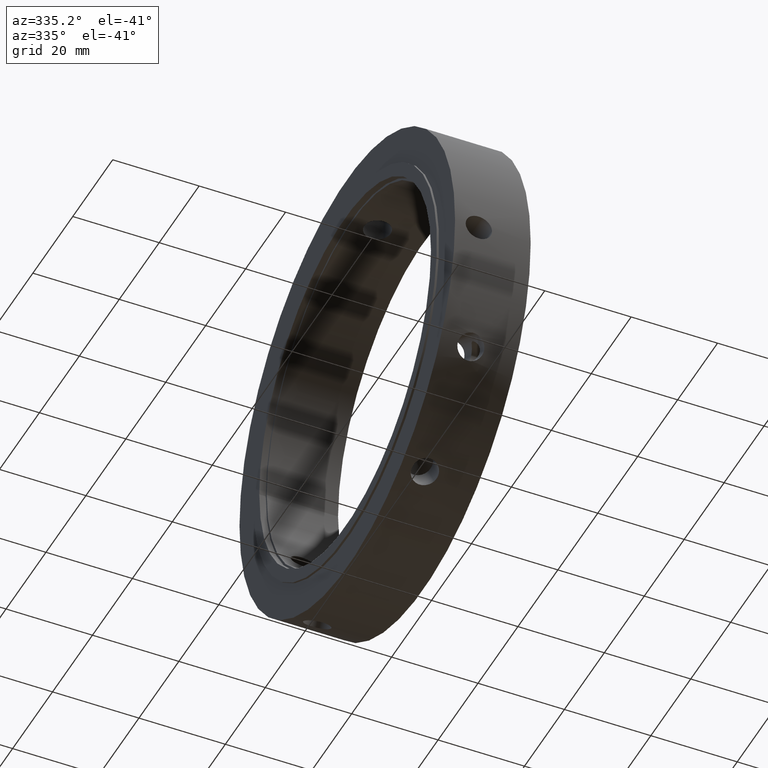
[diagram: clean part render]
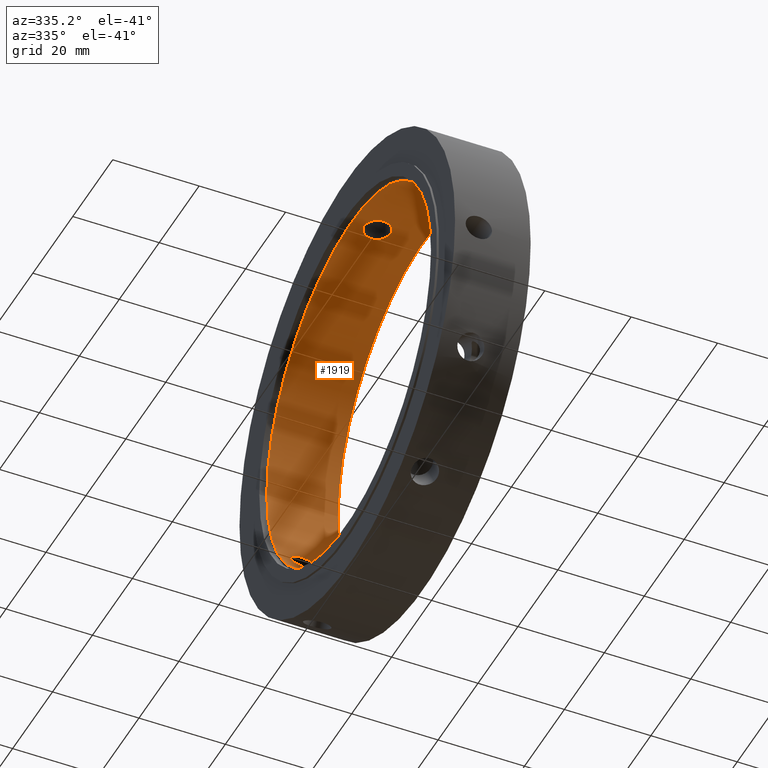
[diagram: same view with one face highlighted and labeled with its STEP entity id]
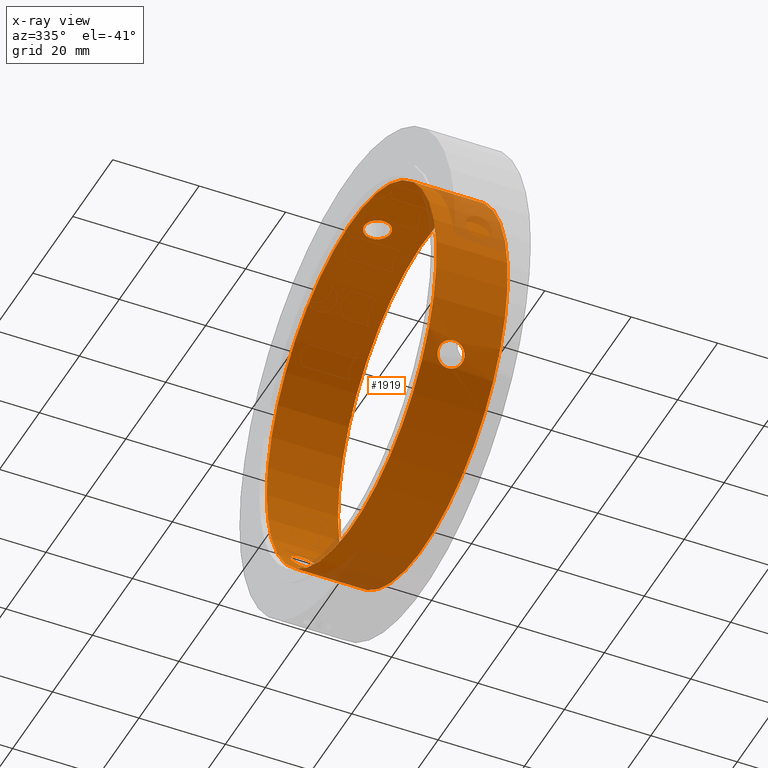
[diagram: x-ray of the same camera — body ghosted, the highlighted face saturated]
A machine part, auxiliary view. The second image highlights one B-rep face of the part: STEP entity #1919.
The next image is the same camera in x-ray: the body ghosted, the highlighted face saturated — about 8% of this face is hidden behind the body in this view.
In plain terms, the highlighted cylindrical surface (bore or boss wall) has radius 42.5 mm, axis along (1, 0, 0).
Its self-contained STEP definition (entity closure, byte-faithful):
#1299=CARTESIAN_POINT('',(7.499999999999987,38.236178474682603,-18.553831293083881));
#1300=VERTEX_POINT('',#1299);
#1301=CARTESIAN_POINT('',(7.499999999999987,38.236178474682603,-18.553831293083878));
#1302=CARTESIAN_POINT('',(7.883106274944957,38.236178474682603,-18.553831293083878));
#1303=CARTESIAN_POINT('',(8.291658294141319,38.202843798673129,-18.623025004710627));
#1304=CARTESIAN_POINT('',(9.043076213914391,38.065105288381453,-18.902965216127651));
#1305=CARTESIAN_POINT('',(9.385953314669767,37.960446009080052,-19.113555886048847));
#1306=CARTESIAN_POINT('',(9.927397807263368,37.713549172504088,-19.596216178089961));
#1307=CARTESIAN_POINT('',(10.162104504257659,37.55479026680171,-19.900477178988208));
#1308=CARTESIAN_POINT('',(10.473409241043472,37.19696225428185,-20.561548166101456));
#1309=CARTESIAN_POINT('',(10.549999999999988,36.997632626157646,-20.918220531727002));
#1310=CARTESIAN_POINT('',(10.549999999999983,36.614526695519615,-21.581779468273034));
#1311=CARTESIAN_POINT('',(10.47340924104347,36.405304180122101,-21.93274017276827));
#1312=CARTESIAN_POINT('',(10.162104504257652,36.011713917837106,-22.573163815352785));
#1313=CARTESIAN_POINT('',(9.927397807263363,35.827595614529535,-22.862783561217185));
#1314=CARTESIAN_POINT('',(9.385953314669761,35.533047958511901,-23.317932639826545));
#1315=CARTESIAN_POINT('',(9.043076213914388,35.403000728210863,-23.513865569403936));
#1316=CARTESIAN_POINT('',(8.291658294141318,35.22943464872877,-23.773120724104459));
#1317=CARTESIAN_POINT('',(7.883106274944957,35.186178474682599,-23.836586256168957));
#1318=CARTESIAN_POINT('',(7.116893725055016,35.186178474682599,-23.836586256168957));
#1319=CARTESIAN_POINT('',(6.708341705858656,35.22943464872877,-23.773120724104459));
#1320=CARTESIAN_POINT('',(5.956923786085585,35.403000728210863,-23.513865569403936));
#1321=CARTESIAN_POINT('',(5.614046685330212,35.533047958511901,-23.317932639826545));
#1322=CARTESIAN_POINT('',(5.072602192736611,35.827595614529535,-22.862783561217185));
#1323=CARTESIAN_POINT('',(4.837895495742323,36.011713917837099,-22.573163815352789));
#1324=CARTESIAN_POINT('',(4.526590758956503,36.405304180122101,-21.932740172768273));
#1325=CARTESIAN_POINT('',(4.449999999999989,36.614526695519615,-21.58177946827303));
#1326=CARTESIAN_POINT('',(4.449999999999986,36.997632626157646,-20.918220531727002));
#1327=CARTESIAN_POINT('',(4.526590758956504,37.196962254281857,-20.561548166101446));
#1328=CARTESIAN_POINT('',(4.837895495742325,37.55479026680171,-19.900477178988197));
#1329=CARTESIAN_POINT('',(5.072602192736606,37.713549172504088,-19.596216178089961));
#1330=CARTESIAN_POINT('',(5.614046685330207,37.960446009080052,-19.113555886048847));
#1331=CARTESIAN_POINT('',(5.956923786085584,38.065105288381453,-18.902965216127651));
#1332=CARTESIAN_POINT('',(6.708341705858655,38.202843798673129,-18.623025004710627));
#1333=CARTESIAN_POINT('',(7.116893725055017,38.236178474682603,-18.553831293083878));
#1334=CARTESIAN_POINT('',(7.499999999999987,38.236178474682603,-18.553831293083878));
#1335=B_SPLINE_CURVE_WITH_KNOTS('',3,(#1301,#1302,#1303,#1304,#1305,#1306,#1307,#1308,#1309,#1310,#1311,#1312,#1313,#1314,#1315,#1316,#1317,#1318,#1319,#1320,#1321,#1322,#1323,#1324,#1325,#1326,#1327,#1328,#1329,#1330,#1331,#1332,#1333,#1334),.UNSPECIFIED.,.T.,.U.,(4,2,2,2,2,2,2,2,2,2,2,2,2,2,2,2,4),(0.0,0.114931882483491,0.229863764966982,0.344795544158393,0.459727323349804,0.574659102541214,0.689590881732624,0.804522764216115,0.919454646699607,1.034386529183098,1.149318411666589,1.264250190857999,1.379181970049409,1.49411374924082,1.609045528432231,1.723977410915722,1.838909293399213),.UNSPECIFIED.);
#1336=EDGE_CURVE('',#1300,#1300,#1335,.T.);
#1456=CARTESIAN_POINT('',(7.499999999999987,-35.18617847468262,-23.836586256168928));
#1457=VERTEX_POINT('',#1456);
#1458=CARTESIAN_POINT('',(7.499999999999987,-35.18617847468262,-23.836586256168928));
#1459=CARTESIAN_POINT('',(7.883106274944957,-35.18617847468262,-23.836586256168928));
#1460=CARTESIAN_POINT('',(8.291658294141316,-35.229434648728784,-23.773120724104434));
#1461=CARTESIAN_POINT('',(9.043076213914389,-35.403000728210877,-23.513865569403908));
#1462=CARTESIAN_POINT('',(9.385953314669765,-35.533047958511901,-23.317932639826523));
#1463=CARTESIAN_POINT('',(9.927397807263368,-35.827595614529535,-22.862783561217164));
#1464=CARTESIAN_POINT('',(10.162104504257652,-36.011713917837113,-22.573163815352764));
#1465=CARTESIAN_POINT('',(10.47340924104347,-36.405304180122116,-21.932740172768241));
#1466=CARTESIAN_POINT('',(10.549999999999986,-36.614526695519636,-21.581779468273016));
#1467=CARTESIAN_POINT('',(10.549999999999986,-36.997632626157667,-20.918220531726984));
#1468=CARTESIAN_POINT('',(10.47340924104347,-37.196962254281857,-20.561548166101439));
#1469=CARTESIAN_POINT('',(10.162104504257652,-37.554790266801717,-19.90047717898819));
#1470=CARTESIAN_POINT('',(9.927397807263365,-37.713549172504102,-19.596216178089943));
#1471=CARTESIAN_POINT('',(9.385953314669763,-37.960446009080073,-19.113555886048829));
#1472=CARTESIAN_POINT('',(9.043076213914391,-38.065105288381467,-18.90296521612763));
#1473=CARTESIAN_POINT('',(8.291658294141319,-38.202843798673143,-18.623025004710602));
#1474=CARTESIAN_POINT('',(7.883106274944957,-38.236178474682617,-18.553831293083856));
#1475=CARTESIAN_POINT('',(7.116893725055016,-38.236178474682617,-18.553831293083856));
#1476=CARTESIAN_POINT('',(6.708341705858654,-38.202843798673143,-18.623025004710602));
#1477=CARTESIAN_POINT('',(5.956923786085582,-38.065105288381467,-18.90296521612763));
#1478=CARTESIAN_POINT('',(5.61404668533021,-37.960446009080073,-19.113555886048829));
#1479=CARTESIAN_POINT('',(5.072602192736609,-37.713549172504102,-19.596216178089943));
#1480=CARTESIAN_POINT('',(4.837895495742317,-37.554790266801717,-19.90047717898819));
#1481=CARTESIAN_POINT('',(4.526590758956501,-37.196962254281857,-20.561548166101439));
#1482=CARTESIAN_POINT('',(4.449999999999987,-36.997632626157667,-20.918220531726984));
#1483=CARTESIAN_POINT('',(4.449999999999987,-36.614526695519636,-21.581779468273016));
#1484=CARTESIAN_POINT('',(4.526590758956504,-36.405304180122108,-21.932740172768245));
#1485=CARTESIAN_POINT('',(4.837895495742326,-36.011713917837106,-22.573163815352771));
#1486=CARTESIAN_POINT('',(5.072602192736606,-35.827595614529535,-22.862783561217164));
#1487=CARTESIAN_POINT('',(5.614046685330209,-35.533047958511901,-23.317932639826523));
#1488=CARTESIAN_POINT('',(5.956923786085584,-35.403000728210877,-23.513865569403908));
#1489=CARTESIAN_POINT('',(6.708341705858657,-35.229434648728784,-23.773120724104434));
#1490=CARTESIAN_POINT('',(7.116893725055016,-35.18617847468262,-23.836586256168928));
#1491=CARTESIAN_POINT('',(7.499999999999987,-35.18617847468262,-23.836586256168928));
#1492=B_SPLINE_CURVE_WITH_KNOTS('',3,(#1458,#1459,#1460,#1461,#1462,#1463,#1464,#1465,#1466,#1467,#1468,#1469,#1470,#1471,#1472,#1473,#1474,#1475,#1476,#1477,#1478,#1479,#1480,#1481,#1482,#1483,#1484,#1485,#1486,#1487,#1488,#1489,#1490,#1491),.UNSPECIFIED.,.T.,.U.,(4,2,2,2,2,2,2,2,2,2,2,2,2,2,2,2,4),(0.0,0.114931882483491,0.229863764966982,0.344795544158393,0.459727323349804,0.574659102541214,0.689590881732625,0.804522764216116,0.919454646699607,1.034386529183098,1.149318411666589,1.264250190858,1.379181970049411,1.494113749240821,1.609045528432232,1.723977410915723,1.838909293399214),.UNSPECIFIED.);
#1493=EDGE_CURVE('',#1457,#1457,#1492,.T.);
#1613=CARTESIAN_POINT('',(7.499999999999987,-3.05,42.390417549252803));
#1614=VERTEX_POINT('',#1613);
#1615=CARTESIAN_POINT('',(7.499999999999986,-3.05,42.390417549252803));
#1616=CARTESIAN_POINT('',(7.883106274944955,-3.05,42.390417549252803));
#1617=CARTESIAN_POINT('',(8.291658294141319,-2.973409149944367,42.396145728815057));
#1618=CARTESIAN_POINT('',(9.043076213914391,-2.662104560170598,42.416830785531552));
#1619=CARTESIAN_POINT('',(9.385953314669765,-2.427398050568162,42.431488525875366));
#1620=CARTESIAN_POINT('',(9.927397807263368,-1.88595355797456,42.458999739307117));
#1621=CARTESIAN_POINT('',(10.162104504257652,-1.543076348964608,42.473640994340954));
#1622=CARTESIAN_POINT('',(10.47340924104347,-0.791658074159748,42.49428833886968));
#1623=CARTESIAN_POINT('',(10.549999999999986,-0.383105930638036,42.5));
#1624=CARTESIAN_POINT('',(10.549999999999986,0.383105930638036,42.5));
#1625=CARTESIAN_POINT('',(10.47340924104347,0.791658074159748,42.49428833886968));
#1626=CARTESIAN_POINT('',(10.162104504257652,1.543076348964608,42.473640994340954));
#1627=CARTESIAN_POINT('',(9.927397807263368,1.88595355797456,42.458999739307117));
#1628=CARTESIAN_POINT('',(9.385953314669765,2.427398050568161,42.431488525875366));
#1629=CARTESIAN_POINT('',(9.043076213914391,2.662104560170598,42.416830785531552));
#1630=CARTESIAN_POINT('',(8.291658294141319,2.973409149944367,42.396145728815057));
#1631=CARTESIAN_POINT('',(7.883106274944956,3.05,42.390417549252803));
#1632=CARTESIAN_POINT('',(7.116893725055017,3.05,42.390417549252803));
#1633=CARTESIAN_POINT('',(6.708341705858656,2.973409149944368,42.396145728815057));
#1634=CARTESIAN_POINT('',(5.956923786085585,2.6621045601706,42.416830785531552));
#1635=CARTESIAN_POINT('',(5.61404668533021,2.427398050568162,42.431488525875366));
#1636=CARTESIAN_POINT('',(5.072602192736607,1.88595355797456,42.458999739307117));
#1637=CARTESIAN_POINT('',(4.837895495742322,1.543076348964607,42.473640994340954));
#1638=CARTESIAN_POINT('',(4.526590758956503,0.791658074159748,42.49428833886968));
#1639=CARTESIAN_POINT('',(4.449999999999987,0.383105930638036,42.5));
#1640=CARTESIAN_POINT('',(4.449999999999987,-0.383105930638035,42.5));
#1641=CARTESIAN_POINT('',(4.526590758956503,-0.791658074159747,42.49428833886968));
#1642=CARTESIAN_POINT('',(4.837895495742322,-1.543076348964607,42.473640994340954));
#1643=CARTESIAN_POINT('',(5.072602192736606,-1.885953557974559,42.45899973930711));
#1644=CARTESIAN_POINT('',(5.614046685330209,-2.427398050568162,42.431488525875366));
#1645=CARTESIAN_POINT('',(5.956923786085583,-2.662104560170598,42.416830785531552));
#1646=CARTESIAN_POINT('',(6.708341705858655,-2.973409149944367,42.396145728815057));
#1647=CARTESIAN_POINT('',(7.116893725055017,-3.05,42.390417549252803));
#1648=CARTESIAN_POINT('',(7.499999999999987,-3.05,42.390417549252803));
#1649=B_SPLINE_CURVE_WITH_KNOTS('',3,(#1615,#1616,#1617,#1618,#1619,#1620,#1621,#1622,#1623,#1624,#1625,#1626,#1627,#1628,#1629,#1630,#1631,#1632,#1633,#1634,#1635,#1636,#1637,#1638,#1639,#1640,#1641,#1642,#1643,#1644,#1645,#1646,#1647,#1648),.UNSPECIFIED.,.T.,.U.,(4,2,2,2,2,2,2,2,2,2,2,2,2,2,2,2,4),(0.0,0.114931882483491,0.229863764966982,0.344795544158393,0.459727323349803,0.574659102541214,0.689590881732625,0.804522764216116,0.919454646699607,1.034386529183098,1.149318411666589,1.264250190858,1.37918197004941,1.494113749240821,1.609045528432232,1.723977410915723,1.838909293399214),.UNSPECIFIED.);
#1650=EDGE_CURVE('',#1614,#1614,#1649,.T.);
#1671=CARTESIAN_POINT('',(1.499999999999988,42.5,0.0));
#1672=VERTEX_POINT('',#1671);
#1673=CARTESIAN_POINT('',(1.499999999999988,0.0,0.0));
#1674=DIRECTION('',(1.0,0.0,0.0));
#1675=DIRECTION('',(0.0,1.0,0.0));
#1676=AXIS2_PLACEMENT_3D('',#1673,#1674,#1675);
#1677=CIRCLE('',#1676,42.5);
#1678=EDGE_CURVE('',#1672,#1672,#1677,.T.);
#1887=CARTESIAN_POINT('',(17.999999999999989,42.5,0.0));
#1888=VERTEX_POINT('',#1887);
#1889=CARTESIAN_POINT('',(17.999999999999989,0.0,0.0));
#1890=DIRECTION('',(1.0,0.0,0.0));
#1891=DIRECTION('',(0.0,1.0,0.0));
#1892=AXIS2_PLACEMENT_3D('',#1889,#1890,#1891);
#1893=CIRCLE('',#1892,42.5);
#1894=EDGE_CURVE('',#1888,#1888,#1893,.T.);
#1899=CARTESIAN_POINT('',(9.749999999999988,0.0,0.0));
#1900=DIRECTION('',(1.0,0.0,0.0));
#1901=DIRECTION('',(0.0,1.0,0.0));
#1902=AXIS2_PLACEMENT_3D('',#1899,#1900,#1901);
#1903=CYLINDRICAL_SURFACE('',#1902,42.5);
#1904=ORIENTED_EDGE('',*,*,#1678,.F.);
#1905=EDGE_LOOP('',(#1904));
#1906=FACE_OUTER_BOUND('',#1905,.T.);
#1907=ORIENTED_EDGE('',*,*,#1336,.T.);
#1908=EDGE_LOOP('',(#1907));
#1909=FACE_BOUND('',#1908,.T.);
#1910=ORIENTED_EDGE('',*,*,#1493,.T.);
#1911=EDGE_LOOP('',(#1910));
#1912=FACE_BOUND('',#1911,.T.);
#1913=ORIENTED_EDGE('',*,*,#1650,.T.);
#1914=EDGE_LOOP('',(#1913));
#1915=FACE_BOUND('',#1914,.T.);
#1916=ORIENTED_EDGE('',*,*,#1894,.T.);
#1917=EDGE_LOOP('',(#1916));
#1918=FACE_BOUND('',#1917,.T.);
#1919=ADVANCED_FACE('',(#1906,#1909,#1912,#1915,#1918),#1903,.F.);